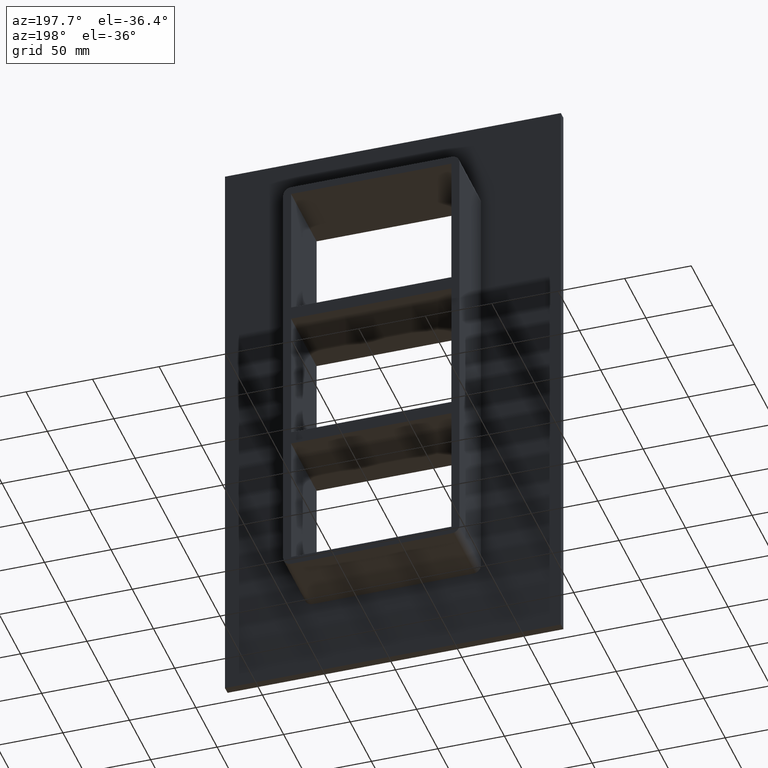
[diagram: clean part render]
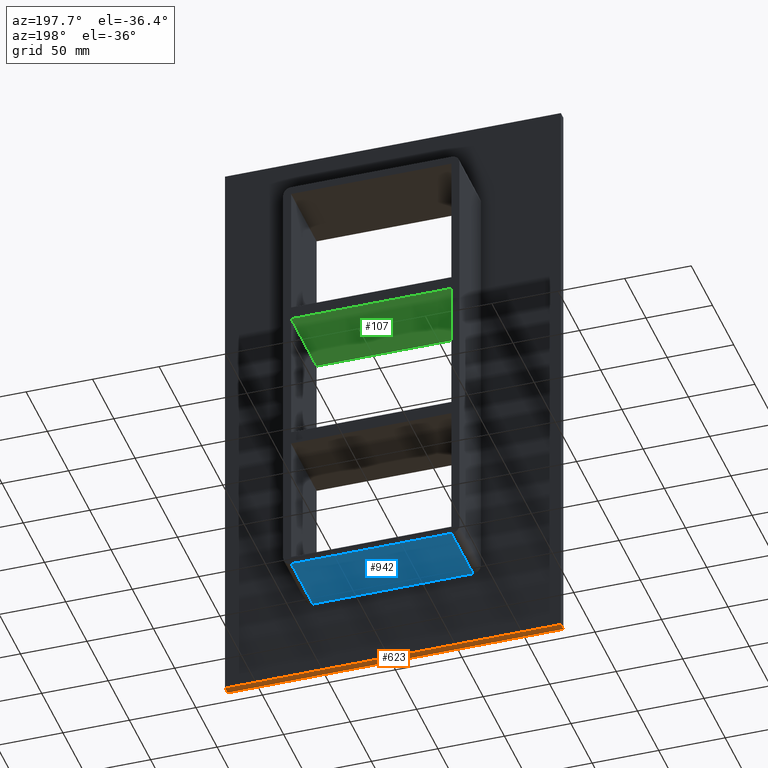
[diagram: same view with three faces highlighted in distinct colors, each labeled with its STEP entity id]
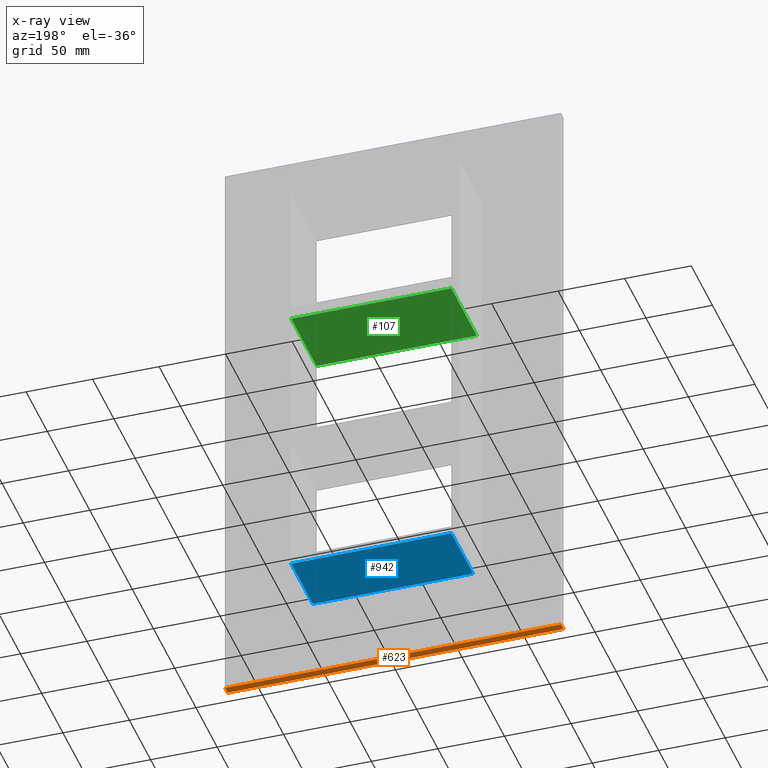
[diagram: x-ray of the same camera — body ghosted, the three highlighted faces saturated]
A machine part, auxiliary view with three faces highlighted in distinct colors.
The next image is the same camera in x-ray (body ghosted, the three faces saturated) — at least one of them is partly hidden behind the body in this view.
Their STEP definitions:

[orange] entity #623 — the highlighted planar face has unit normal (0, 0, -1).
#380=CARTESIAN_POINT('',(126.25,6.000000000000001,-227.50000000000006));
#381=VERTEX_POINT('',#380);
#388=CARTESIAN_POINT('',(-126.25,6.000000000000001,-227.50000000000006));
#389=VERTEX_POINT('',#388);
#390=CARTESIAN_POINT('',(126.25,6.000000000000001,-227.50000000000006));
#391=DIRECTION('',(-1.0,0.0,0.0));
#392=VECTOR('',#391,252.5);
#393=LINE('',#390,#392);
#394=EDGE_CURVE('',#381,#389,#393,.T.);
#490=CARTESIAN_POINT('',(-126.25,0.0,-227.50000000000006));
#491=VERTEX_POINT('',#490);
#498=CARTESIAN_POINT('',(126.25,0.0,-227.50000000000006));
#499=VERTEX_POINT('',#498);
#500=CARTESIAN_POINT('',(126.25,0.0,-227.50000000000006));
#501=DIRECTION('',(-1.0,0.0,0.0));
#502=VECTOR('',#501,252.5);
#503=LINE('',#500,#502);
#504=EDGE_CURVE('',#499,#491,#503,.T.);
#598=CARTESIAN_POINT('',(-126.25,0.0,-227.50000000000006));
#599=DIRECTION('',(0.0,1.0,0.0));
#600=VECTOR('',#599,6.000000000000001);
#601=LINE('',#598,#600);
#602=EDGE_CURVE('',#491,#389,#601,.T.);
#607=CARTESIAN_POINT('',(126.25,0.0,-227.50000000000006));
#608=DIRECTION('',(0.0,0.0,-1.0));
#609=DIRECTION('',(-1.0,0.0,0.0));
#610=AXIS2_PLACEMENT_3D('',#607,#608,#609);
#611=PLANE('',#610);
#612=ORIENTED_EDGE('',*,*,#504,.T.);
#613=ORIENTED_EDGE('',*,*,#602,.T.);
#614=ORIENTED_EDGE('',*,*,#394,.F.);
#615=CARTESIAN_POINT('',(126.25,0.0,-227.50000000000006));
#616=DIRECTION('',(0.0,1.0,0.0));
#617=VECTOR('',#616,6.000000000000001);
#618=LINE('',#615,#617);
#619=EDGE_CURVE('',#499,#381,#618,.T.);
#620=ORIENTED_EDGE('',*,*,#619,.F.);
#621=EDGE_LOOP('',(#612,#613,#614,#620));
#622=FACE_OUTER_BOUND('',#621,.T.);
#623=ADVANCED_FACE('',(#622),#611,.T.);

[blue] entity #942 — the highlighted planar face has unit normal (0, 0, -1).
#404=CARTESIAN_POINT('',(-60.25,6.000000000000001,-167.5));
#405=VERTEX_POINT('',#404);
#415=CARTESIAN_POINT('',(60.25,6.000000000000001,-167.5));
#416=VERTEX_POINT('',#415);
#417=CARTESIAN_POINT('',(60.25,6.000000000000001,-167.5));
#418=DIRECTION('',(-1.0,0.0,0.0));
#419=VECTOR('',#418,120.5);
#420=LINE('',#417,#419);
#421=EDGE_CURVE('',#416,#405,#420,.T.);
#851=CARTESIAN_POINT('',(60.25,57.0,-167.5));
#852=VERTEX_POINT('',#851);
#853=CARTESIAN_POINT('',(60.25,6.000000000000001,-167.5));
#854=DIRECTION('',(0.0,1.0,0.0));
#855=VECTOR('',#854,51.0);
#856=LINE('',#853,#855);
#857=EDGE_CURVE('',#416,#852,#856,.T.);
#919=CARTESIAN_POINT('',(66.25,0.0,-167.5));
#920=DIRECTION('',(0.0,0.0,-1.0));
#921=DIRECTION('',(-1.0,0.0,0.0));
#922=AXIS2_PLACEMENT_3D('',#919,#920,#921);
#923=PLANE('',#922);
#924=ORIENTED_EDGE('',*,*,#421,.T.);
#925=CARTESIAN_POINT('',(-60.25,57.0,-167.5));
#926=VERTEX_POINT('',#925);
#927=CARTESIAN_POINT('',(-60.25,57.0,-167.5));
#928=DIRECTION('',(0.0,-1.0,0.0));
#929=VECTOR('',#928,51.0);
#930=LINE('',#927,#929);
#931=EDGE_CURVE('',#926,#405,#930,.T.);
#932=ORIENTED_EDGE('',*,*,#931,.F.);
#933=CARTESIAN_POINT('',(60.25,57.0,-167.5));
#934=DIRECTION('',(-1.0,0.0,0.0));
#935=VECTOR('',#934,120.5);
#936=LINE('',#933,#935);
#937=EDGE_CURVE('',#852,#926,#936,.T.);
#938=ORIENTED_EDGE('',*,*,#937,.F.);
#939=ORIENTED_EDGE('',*,*,#857,.F.);
#940=EDGE_LOOP('',(#924,#932,#938,#939));
#941=FACE_OUTER_BOUND('',#940,.T.);
#942=ADVANCED_FACE('',(#941),#923,.T.);

[green] entity #107 — the highlighted planar face has unit normal (0, 0, -1).
#68=CARTESIAN_POINT('',(60.249999999996362,-3.0,50.499999999990663));
#69=DIRECTION('',(0.0,0.0,-1.0));
#70=DIRECTION('',(-1.0,0.0,0.0));
#71=AXIS2_PLACEMENT_3D('',#68,#69,#70);
#72=PLANE('',#71);
#73=CARTESIAN_POINT('',(60.249999999996362,-3.0,50.499999999990663));
#74=VERTEX_POINT('',#73);
#75=CARTESIAN_POINT('',(-60.249999999999694,-3.0,50.499999999990521));
#76=VERTEX_POINT('',#75);
#77=CARTESIAN_POINT('',(60.249999999996362,-3.0,50.499999999990663));
#78=DIRECTION('',(-1.0,0.0,0.0));
#79=VECTOR('',#78,120.49999999999606);
#80=LINE('',#77,#79);
#81=EDGE_CURVE('',#74,#76,#80,.T.);
#82=ORIENTED_EDGE('',*,*,#81,.T.);
#83=CARTESIAN_POINT('',(-60.249999999999694,57.0,50.499999999990521));
#84=VERTEX_POINT('',#83);
#85=CARTESIAN_POINT('',(-60.249999999999993,57.000000000000007,50.499999999990521));
#86=DIRECTION('',(0.0,-1.0,0.0));
#87=VECTOR('',#86,60.000000000000007);
#88=LINE('',#85,#87);
#89=EDGE_CURVE('',#84,#76,#88,.T.);
#90=ORIENTED_EDGE('',*,*,#89,.F.);
#91=CARTESIAN_POINT('',(60.249999999996369,57.0,50.499999999990663));
#92=VERTEX_POINT('',#91);
#93=CARTESIAN_POINT('',(60.249999999996362,57.0,50.499999999990663));
#94=DIRECTION('',(-1.0,0.0,0.0));
#95=VECTOR('',#94,120.49999999999606);
#96=LINE('',#93,#95);
#97=EDGE_CURVE('',#92,#84,#96,.T.);
#98=ORIENTED_EDGE('',*,*,#97,.F.);
#99=CARTESIAN_POINT('',(60.25,-3.0,50.499999999990663));
#100=DIRECTION('',(0.0,1.0,0.0));
#101=VECTOR('',#100,60.000000000000007);
#102=LINE('',#99,#101);
#103=EDGE_CURVE('',#74,#92,#102,.T.);
#104=ORIENTED_EDGE('',*,*,#103,.F.);
#105=EDGE_LOOP('',(#82,#90,#98,#104));
#106=FACE_OUTER_BOUND('',#105,.T.);
#107=ADVANCED_FACE('',(#106),#72,.T.);